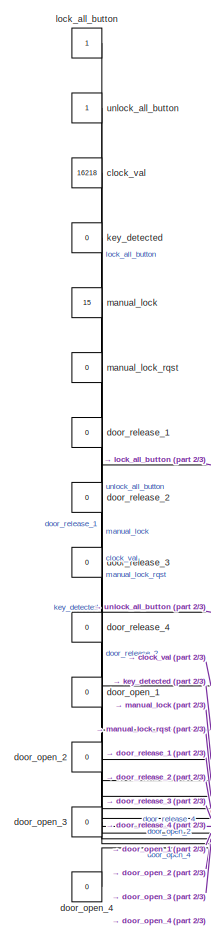
[diagram: root canvas - part 1/3, left side, full height]
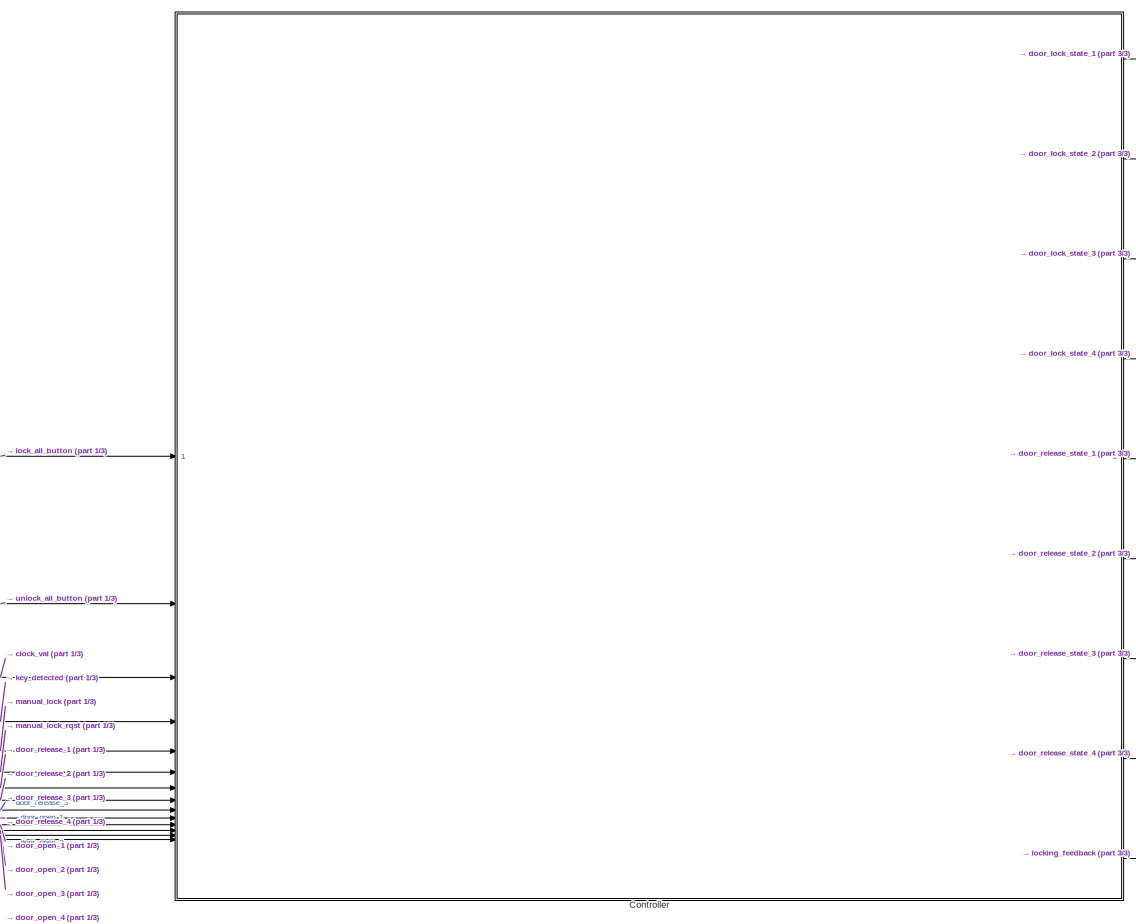
[diagram: root canvas - part 2/3, most of the canvas]
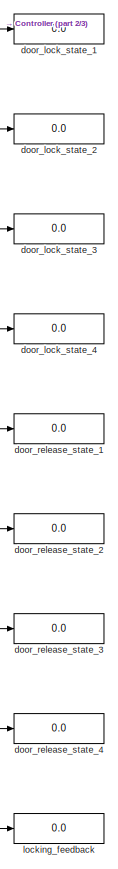
[diagram: root canvas - part 3/3, right side, full height]
MODEL slx_a0f705b261dc
KIND model
CONFIG AbsTol = auto
CONFIG EnableMultiTasking = off
CONFIG FixedStep = 0.1
CONFIG MaxStep = auto
CONFIG MinStep = auto
CONFIG RelTol = 1e-3
CONFIG SampleTimeConstraint = Unconstrained
CONFIG SolverName = FixedStepDiscrete
CONFIG StartTime = 0.0
CONFIG StopTime = inf
BLOCK [ModelReference] Controller
  ModelNameDialog = main.slx
  ModelReferenceVersion = 1.122
BLOCK [Constant] clock_val
  OutDataTypeStr = uint64
  Value = 16218
BLOCK [Display] door_lock_state_1
  Decimation = 1
BLOCK [Display] door_lock_state_2
  Decimation = 1
BLOCK [Display] door_lock_state_3
  Decimation = 1
BLOCK [Display] door_lock_state_4
  Decimation = 1
BLOCK [Constant] door_open_1
  OutDataTypeStr = uint8
  Value = 0
BLOCK [Constant] door_open_2
  OutDataTypeStr = uint8
  Value = 0
BLOCK [Constant] door_open_3
  OutDataTypeStr = uint8
  Value = 0
BLOCK [Constant] door_open_4
  OutDataTypeStr = uint8
  Value = 0
BLOCK [Constant] door_release_1
  OutDataTypeStr = uint8
  OutMax = 1
  OutMin = 0
  Value = 0
BLOCK [Constant] door_release_2
  OutDataTypeStr = uint8
  OutMax = 1
  OutMin = 0
  Value = 0
BLOCK [Constant] door_release_3
  OutDataTypeStr = uint8
  OutMax = 1
  OutMin = 0
  Value = 0
BLOCK [Constant] door_release_4
  OutDataTypeStr = uint8
  OutMax = 1
  OutMin = 0
  Value = 0
BLOCK [Display] door_release_state_1
  Decimation = 1
BLOCK [Display] door_release_state_2
  Decimation = 1
BLOCK [Display] door_release_state_3
  Decimation = 1
BLOCK [Display] door_release_state_4
  Decimation = 1
BLOCK [Constant] key_detected
  OutDataTypeStr = uint8
  Value = 0
BLOCK [Constant] lock_all_button
  OutDataTypeStr = uint8
BLOCK [Display] locking_feedback
  Decimation = 1
BLOCK [Constant] manual_lock
  OutDataTypeStr = uint8
  Value = 15
BLOCK [Constant] manual_lock_rqst
  OutDataTypeStr = uint8
  Value = 0
BLOCK [Constant] unlock_all_button
  OutDataTypeStr = uint8
LINE Controller:1 -> door_lock_state_1:1
LINE Controller:2 -> door_lock_state_2:1
LINE Controller:3 -> door_lock_state_3:1
LINE Controller:4 -> door_lock_state_4:1
LINE Controller:5 -> door_release_state_1:1
LINE Controller:6 -> door_release_state_2:1
LINE Controller:7 -> door_release_state_3:1
LINE Controller:8 -> door_release_state_4:1
LINE Controller:9 -> locking_feedback:1
LINE clock_val:1 -> Controller:3
LINE door_open_1:1 -> Controller:11
LINE door_open_2:1 -> Controller:12
LINE door_open_3:1 -> Controller:13
LINE door_open_4:1 -> Controller:14
LINE door_release_1:1 -> Controller:7
LINE door_release_2:1 -> Controller:8
LINE door_release_3:1 -> Controller:9
LINE door_release_4:1 -> Controller:10
LINE key_detected:1 -> Controller:4
LINE lock_all_button:1 -> Controller:1
LINE manual_lock:1 -> Controller:5
LINE manual_lock_rqst:1 -> Controller:6
LINE unlock_all_button:1 -> Controller:2
